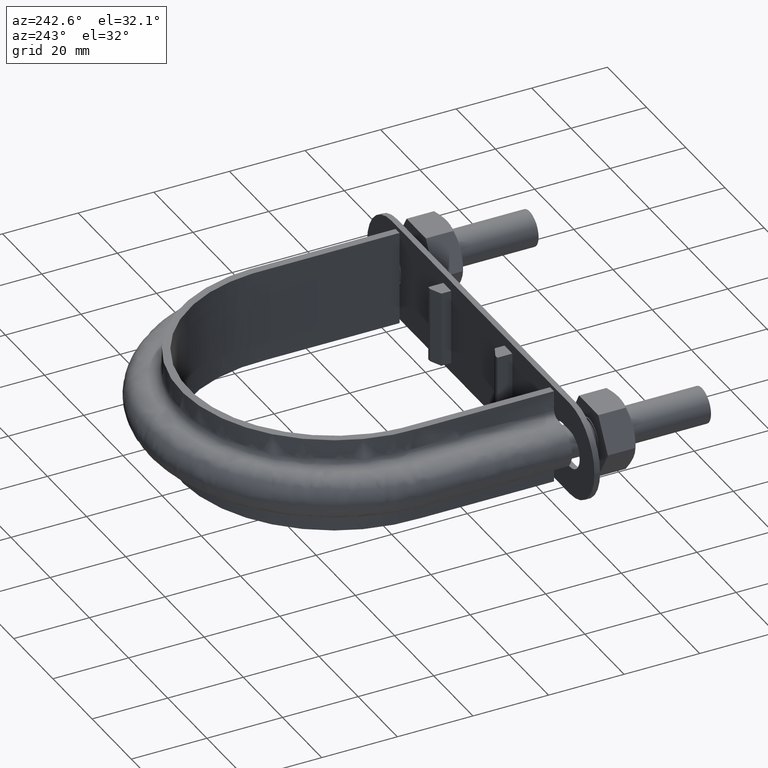
[diagram: clean part render]
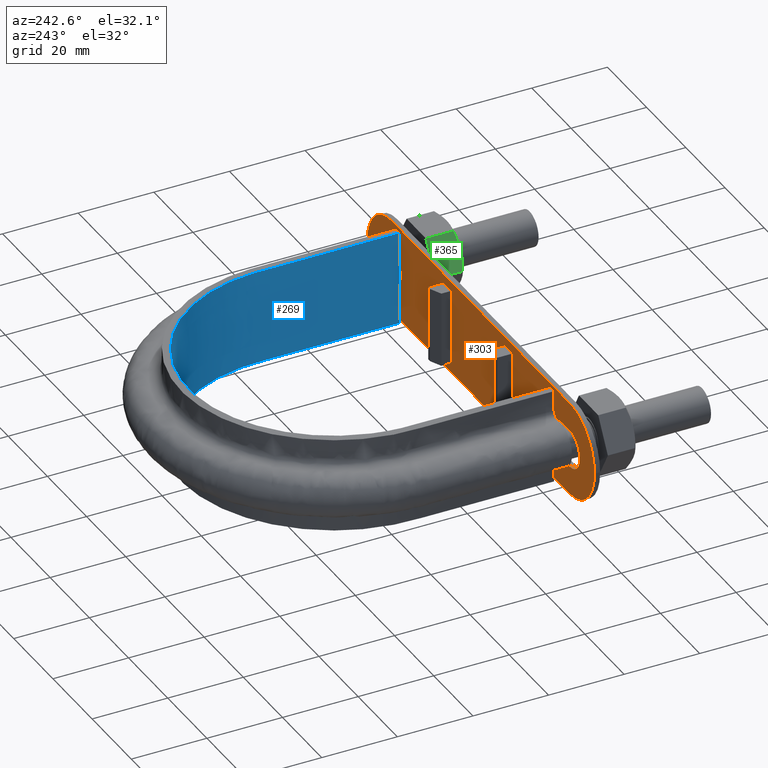
[diagram: same view with three faces highlighted in distinct colors, each labeled with its STEP entity id]
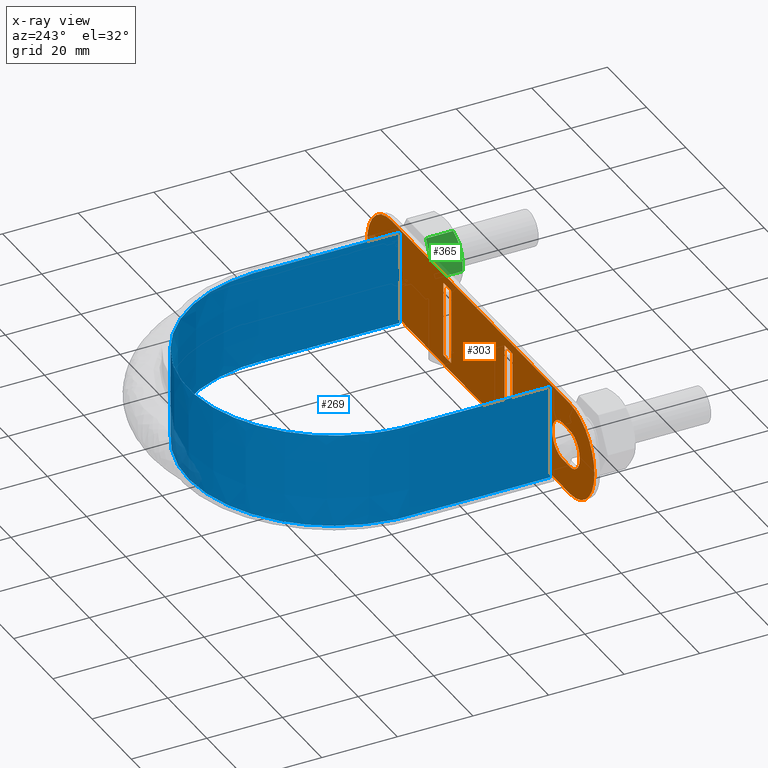
[diagram: x-ray of the same camera — body ghosted, the three highlighted faces saturated]
A machine part, auxiliary view with three faces highlighted in distinct colors.
The next image is the same camera in x-ray (body ghosted, the three faces saturated) — at least one of them is partly hidden behind the body in this view.
Their STEP definitions:

[orange] entity #303 — the highlighted planar face has unit normal (-0, 1, -0).
#303 = ADVANCED_FACE( '', ( #467, #468, #469, #470, #471 ), #472, .T. );
#467 = FACE_BOUND( '', #1549, .T. );
#468 = FACE_BOUND( '', #1550, .T. );
#469 = FACE_BOUND( '', #1551, .T. );
#470 = FACE_OUTER_BOUND( '', #1552, .T. );
#471 = FACE_BOUND( '', #1553, .T. );
#472 = PLANE( '', #1554 );
#1549 = EDGE_LOOP( '', ( #1969, #1970, #1971, #1972 ) );
#1550 = EDGE_LOOP( '', ( #1973, #1974, #1975, #1976 ) );
#1551 = EDGE_LOOP( '', ( #1977 ) );
#1552 = EDGE_LOOP( '', ( #1978, #1979, #1980, #1981, #1982, #1983 ) );
#1553 = EDGE_LOOP( '', ( #1984, #1985, #1986, #1987 ) );
#1554 = AXIS2_PLACEMENT_3D( '', #1988, #1989, #1990 );
#1969 = ORIENTED_EDGE( '', *, *, #2625, .F. );
#1970 = ORIENTED_EDGE( '', *, *, #2626, .T. );
#1971 = ORIENTED_EDGE( '', *, *, #2627, .T. );
#1972 = ORIENTED_EDGE( '', *, *, #2628, .F. );
#1973 = ORIENTED_EDGE( '', *, *, #2629, .F. );
#1974 = ORIENTED_EDGE( '', *, *, #2622, .F. );
#1975 = ORIENTED_EDGE( '', *, *, #2630, .F. );
#1976 = ORIENTED_EDGE( '', *, *, #2631, .F. );
#1977 = ORIENTED_EDGE( '', *, *, #2632, .F. );
#1978 = ORIENTED_EDGE( '', *, *, #2612, .T. );
#1979 = ORIENTED_EDGE( '', *, *, #2633, .T. );
#1980 = ORIENTED_EDGE( '', *, *, #2634, .T. );
#1981 = ORIENTED_EDGE( '', *, *, #2635, .T. );
#1982 = ORIENTED_EDGE( '', *, *, #2636, .T. );
#1983 = ORIENTED_EDGE( '', *, *, #2637, .T. );
#1984 = ORIENTED_EDGE( '', *, *, #2638, .F. );
#1985 = ORIENTED_EDGE( '', *, *, #2639, .T. );
#1986 = ORIENTED_EDGE( '', *, *, #2640, .T. );
#1987 = ORIENTED_EDGE( '', *, *, #2641, .F. );
#1988 = CARTESIAN_POINT( '', ( -47.0000000000000, 36.5000000000000, 1.16488427775561E-011 ) );
#1989 = DIRECTION( '', ( -4.78873666697753E-017, 1.00000000000000, -1.48458090479487E-015 ) );
#1990 = DIRECTION( '', ( 2.47579734491594E-013, 1.48458090479488E-015, 1.00000000000000 ) );
#2612 = EDGE_CURVE( '', #2901, #2902, #2903, .T. );
#2622 = EDGE_CURVE( '', #2917, #2918, #2919, .T. );
#2625 = EDGE_CURVE( '', #2922, #2923, #2924, .T. );
#2626 = EDGE_CURVE( '', #2922, #2925, #2926, .T. );
#2627 = EDGE_CURVE( '', #2925, #2927, #2928, .T. );
#2628 = EDGE_CURVE( '', #2923, #2927, #2929, .T. );
#2629 = EDGE_CURVE( '', #2918, #2930, #2931, .F. );
#2630 = EDGE_CURVE( '', #2932, #2917, #2933, .F. );
#2631 = EDGE_CURVE( '', #2930, #2932, #2934, .T. );
#2632 = EDGE_CURVE( '', #2935, #2935, #2936, .T. );
#2633 = EDGE_CURVE( '', #2902, #2937, #2938, .T. );
#2634 = EDGE_CURVE( '', #2937, #2939, #2940, .T. );
#2635 = EDGE_CURVE( '', #2939, #2941, #2942, .T. );
#2636 = EDGE_CURVE( '', #2941, #2943, #2944, .T. );
#2637 = EDGE_CURVE( '', #2943, #2901, #2945, .T. );
#2638 = EDGE_CURVE( '', #2946, #2947, #2948, .T. );
#2639 = EDGE_CURVE( '', #2946, #2949, #2950, .T. );
#2640 = EDGE_CURVE( '', #2949, #2951, #2952, .T. );
#2641 = EDGE_CURVE( '', #2947, #2951, #2953, .T. );
#2901 = VERTEX_POINT( '', #3570 );
#2902 = VERTEX_POINT( '', #3571 );
#2903 = CIRCLE( '', #3572, 12.5000000000000 );
#2917 = VERTEX_POINT( '', #3595 );
#2918 = VERTEX_POINT( '', #3596 );
#2919 = LINE( '', #3597, #3598 );
#2922 = VERTEX_POINT( '', #3603 );
#2923 = VERTEX_POINT( '', #3604 );
#2924 = LINE( '', #3605, #3606 );
#2925 = VERTEX_POINT( '', #3607 );
#2926 = LINE( '', #3608, #3609 );
#2927 = VERTEX_POINT( '', #3610 );
#2928 = LINE( '', #3611, #3612 );
#2929 = LINE( '', #3613, #3614 );
#2930 = VERTEX_POINT( '', #3615 );
#2931 = CIRCLE( '', #3616, 5.00000000000000 );
#2932 = VERTEX_POINT( '', #3617 );
#2933 = CIRCLE( '', #3618, 5.00000000000000 );
#2934 = LINE( '', #3619, #3620 );
#2935 = VERTEX_POINT( '', #3621 );
#2936 = CIRCLE( '', #3622, 5.00000000000000 );
#2937 = VERTEX_POINT( '', #3623 );
#2938 = LINE( '', #3624, #3625 );
#2939 = VERTEX_POINT( '', #3626 );
#2940 = CIRCLE( '', #3627, 12.5000000000000 );
#2941 = VERTEX_POINT( '', #3628 );
#2942 = CIRCLE( '', #3629, 12.5000000000000 );
#2943 = VERTEX_POINT( '', #3630 );
#2944 = LINE( '', #3631, #3632 );
#2945 = CIRCLE( '', #3633, 12.5000000000000 );
#2946 = VERTEX_POINT( '', #3634 );
#2947 = VERTEX_POINT( '', #3635 );
#2948 = LINE( '', #3636, #3637 );
#2949 = VERTEX_POINT( '', #3638 );
#2950 = LINE( '', #3639, #3640 );
#2951 = VERTEX_POINT( '', #3641 );
#2952 = LINE( '', #3642, #3643 );
#2953 = LINE( '', #3644, #3645 );
#3570 = CARTESIAN_POINT( '', ( -59.5000000000000, 36.5000000000000, 1.47401200117491E-011 ) );
#3571 = CARTESIAN_POINT( '', ( -46.9999999999969, 36.5000000000000, 12.5000000000116 ) );
#3572 = AXIS2_PLACEMENT_3D( '', #4183, #4184, #4185 );
#3595 = CARTESIAN_POINT( '', ( -43.0000000000012, 36.5000000000000, -4.99999999998934 ) );
#3596 = CARTESIAN_POINT( '', ( -47.0000000000012, 36.5000000000000, -4.99999999998835 ) );
#3597 = CARTESIAN_POINT( '', ( -47.0000000000012, 36.5000000000000, -4.99999999998835 ) );
#3598 = VECTOR( '', #4195, 1000.00000000000 );
#3603 = CARTESIAN_POINT( '', ( 13.5999999999975, 36.5000000000000, -10.0000000000034 ) );
#3604 = CARTESIAN_POINT( '', ( 13.6000000000025, 36.5000000000000, 9.99999999999664 ) );
#3605 = CARTESIAN_POINT( '', ( 13.5999999999975, 36.5000000000000, -10.0000000000034 ) );
#3606 = VECTOR( '', #4198, 1000.00000000000 );
#3607 = CARTESIAN_POINT( '', ( 17.5999999999975, 36.5000000000000, -10.0000000000043 ) );
#3608 = CARTESIAN_POINT( '', ( 13.5999999999975, 36.5000000000000, -10.0000000000034 ) );
#3609 = VECTOR( '', #4199, 1000.00000000000 );
#3610 = CARTESIAN_POINT( '', ( 17.6000000000025, 36.5000000000000, 9.99999999999565 ) );
#3611 = CARTESIAN_POINT( '', ( 17.5999999999975, 36.5000000000000, -10.0000000000043 ) );
#3612 = VECTOR( '', #4200, 1000.00000000000 );
#3613 = CARTESIAN_POINT( '', ( 13.6000000000025, 36.5000000000000, 9.99999999999664 ) );
#3614 = VECTOR( '', #4201, 1000.00000000000 );
#3615 = CARTESIAN_POINT( '', ( -46.9999999999988, 36.5000000000000, 5.00000000001165 ) );
#3616 = AXIS2_PLACEMENT_3D( '', #4202, #4203, #4204 );
#3617 = CARTESIAN_POINT( '', ( -42.9999999999988, 36.5000000000000, 5.00000000001066 ) );
#3618 = AXIS2_PLACEMENT_3D( '', #4205, #4206, #4207 );
#3619 = CARTESIAN_POINT( '', ( -42.9999999999988, 36.5000000000000, 5.00000000001066 ) );
#3620 = VECTOR( '', #4208, 1000.00000000000 );
#3621 = CARTESIAN_POINT( '', ( 49.0000000000000, 36.5000100000000, -1.21170770250068E-011 ) );
#3622 = AXIS2_PLACEMENT_3D( '', #4209, #4210, #4211 );
#3623 = CARTESIAN_POINT( '', ( 44.0000000000031, 36.5000000000000, 12.4999999999891 ) );
#3624 = CARTESIAN_POINT( '', ( -46.9999999999969, 36.5000000000000, 12.5000000000116 ) );
#3625 = VECTOR( '', #4212, 1000.00000000000 );
#3626 = CARTESIAN_POINT( '', ( 56.5000000000000, 36.5000000000000, -1.39756597423239E-011 ) );
#3627 = AXIS2_PLACEMENT_3D( '', #4213, #4214, #4215 );
#3628 = CARTESIAN_POINT( '', ( 43.9999999999970, 36.5000000000000, -12.5000000000109 ) );
#3629 = AXIS2_PLACEMENT_3D( '', #4216, #4217, #4218 );
#3630 = CARTESIAN_POINT( '', ( -47.0000000000031, 36.5000000000000, -12.4999999999883 ) );
#3631 = CARTESIAN_POINT( '', ( 43.9999999999970, 36.5000000000000, -12.5000000000109 ) );
#3632 = VECTOR( '', #4219, 1000.00000000000 );
#3633 = AXIS2_PLACEMENT_3D( '', #4220, #4221, #4222 );
#3634 = CARTESIAN_POINT( '', ( -17.6000000000025, 36.5000000000000, -9.99999999999563 ) );
#3635 = CARTESIAN_POINT( '', ( -17.5999999999976, 36.5000000000000, 10.0000000000044 ) );
#3636 = CARTESIAN_POINT( '', ( -17.6000000000025, 36.5000000000000, -9.99999999999563 ) );
#3637 = VECTOR( '', #4223, 1000.00000000000 );
#3638 = CARTESIAN_POINT( '', ( -13.6000000000025, 36.5000000000000, -9.99999999999662 ) );
#3639 = CARTESIAN_POINT( '', ( -17.6000000000025, 36.5000000000000, -9.99999999999563 ) );
#3640 = VECTOR( '', #4224, 1000.00000000000 );
#3641 = CARTESIAN_POINT( '', ( -13.5999999999975, 36.5000000000000, 10.0000000000034 ) );
#3642 = CARTESIAN_POINT( '', ( -13.6000000000025, 36.5000000000000, -9.99999999999662 ) );
#3643 = VECTOR( '', #4225, 1000.00000000000 );
#3644 = CARTESIAN_POINT( '', ( -17.5999999999975, 36.5000000000000, 10.0000000000044 ) );
#3645 = VECTOR( '', #4226, 1000.00000000000 );
#4183 = CARTESIAN_POINT( '', ( -47.0000000000000, 36.5000000000000, 1.16488427775561E-011 ) );
#4184 = DIRECTION( '', ( -4.78873666697753E-017, 1.00000000000000, -1.48458090479487E-015 ) );
#4185 = DIRECTION( '', ( -1.00000000000000, -4.78873666694079E-017, 2.47440956613516E-013 ) );
#4195 = DIRECTION( '', ( -1.00000000000000, -4.78873666694077E-017, 2.47579734491594E-013 ) );
#4198 = DIRECTION( '', ( 2.47417475293282E-013, 1.79647368299532E-015, 1.00000000000000 ) );
#4199 = DIRECTION( '', ( 1.00000000000000, 4.78873666694077E-017, -2.47579734491594E-013 ) );
#4200 = DIRECTION( '', ( 2.47417475293282E-013, 1.79647368299532E-015, 1.00000000000000 ) );
#4201 = DIRECTION( '', ( 1.00000000000000, 4.78873666694077E-017, -2.47579734491594E-013 ) );
#4202 = CARTESIAN_POINT( '', ( -47.0000000000000, 36.5000000000000, 1.16505775010321E-011 ) );
#4203 = DIRECTION( '', ( 4.78873666697753E-017, -1.00000000000000, 1.48458090479487E-015 ) );
#4204 = DIRECTION( '', ( -1.00000000000000, -4.78873666694077E-017, 2.47579734491594E-013 ) );
#4205 = CARTESIAN_POINT( '', ( -43.0000000000000, 36.5000000000000, 1.06602585630657E-011 ) );
#4206 = DIRECTION( '', ( 4.78873666697753E-017, -1.00000000000000, 1.48458090479487E-015 ) );
#4207 = DIRECTION( '', ( -1.00000000000000, -4.78873666694077E-017, 2.47579734491594E-013 ) );
#4208 = DIRECTION( '', ( 1.00000000000000, 4.78873666694077E-017, -2.47579734491594E-013 ) );
#4209 = CARTESIAN_POINT( '', ( 44.0000000000000, 36.5000100000000, -1.08791783525488E-011 ) );
#4210 = DIRECTION( '', ( -4.78873666697753E-017, 1.00000000000000, -1.48458090479487E-015 ) );
#4211 = DIRECTION( '', ( 1.00000000000000, 4.78873666694077E-017, -2.47579734491594E-013 ) );
#4212 = DIRECTION( '', ( 1.00000000000000, 4.78873666694077E-017, -2.47579734491594E-013 ) );
#4213 = CARTESIAN_POINT( '', ( 44.0000000000000, 36.5000000000000, -1.08809130611790E-011 ) );
#4214 = DIRECTION( '', ( -4.78873666697753E-017, 1.00000000000000, -1.48458090479487E-015 ) );
#4215 = DIRECTION( '', ( 2.47579734491594E-013, 1.48458090479488E-015, 1.00000000000000 ) );
#4216 = CARTESIAN_POINT( '', ( 44.0000000000000, 36.5000000000000, -1.08774436142271E-011 ) );
#4217 = DIRECTION( '', ( -4.78873666697753E-017, 1.00000000000000, -1.48458090479487E-015 ) );
#4218 = DIRECTION( '', ( 1.00000000000000, 4.78873666694079E-017, -2.47440956613516E-013 ) );
#4219 = DIRECTION( '', ( -1.00000000000000, -4.78873666694077E-017, 2.47579734491594E-013 ) );
#4220 = CARTESIAN_POINT( '', ( -47.0000000000000, 36.5000000000000, 1.16523122245081E-011 ) );
#4221 = DIRECTION( '', ( -4.78873666697753E-017, 1.00000000000000, -1.48458090479487E-015 ) );
#4222 = DIRECTION( '', ( -2.47024622979282E-013, -1.48458090479488E-015, -1.00000000000000 ) );
#4223 = DIRECTION( '', ( 2.47417475293282E-013, 1.79647368299532E-015, 1.00000000000000 ) );
#4224 = DIRECTION( '', ( 1.00000000000000, 4.78873666694077E-017, -2.47579734491594E-013 ) );
#4225 = DIRECTION( '', ( 2.47417475293282E-013, 1.79647368299532E-015, 1.00000000000000 ) );
#4226 = DIRECTION( '', ( 1.00000000000000, 4.78873666694077E-017, -2.47579734491594E-013 ) );

[blue] entity #269 — the highlighted face is a SurfaceOfExtrusion surface.
#269 = ADVANCED_FACE( '', ( #387 ), #388, .T. );
#387 = FACE_OUTER_BOUND( '', #644, .T. );
#388 = SURFACE_OF_LINEAR_EXTRUSION( '', #645, #646 );
#644 = EDGE_LOOP( '', ( #1736, #1737, #1738, #1739 ) );
#645 = B_SPLINE_CURVE_WITH_KNOTS( '', 3, ( #1740, #1741, #1742, #1743, #1744, #1745, #1746, #1747, #1748, #1749, #1750, #1751, #1752, #1753, #1754, #1755, #1756 ), .UNSPECIFIED., .F., .F., ( 4, 3, 1, 1, 1, 1, 1, 1, 1, 3, 4 ), ( -7.93017456359102, -7.00000000000000, -6.50000000000000, -6.00000000000000, -5.00000000000000, -4.00000000000000, -3.00000000000000, -2.00000000000000, -1.50000000000000, -1.00000000000000, -0.0698254364089773 ), .UNSPECIFIED. );
#646 = VECTOR( '', #1757, 1000.00000000000 );
#1736 = ORIENTED_EDGE( '', *, *, #2546, .T. );
#1737 = ORIENTED_EDGE( '', *, *, #2555, .T. );
#1738 = ORIENTED_EDGE( '', *, *, #2552, .F. );
#1739 = ORIENTED_EDGE( '', *, *, #2556, .T. );
#1740 = CARTESIAN_POINT( '', ( 38.4000000000000, 37.3000000000000, 12.5000100000909 ) );
#1741 = CARTESIAN_POINT( '', ( 38.4000000000000, 49.7333333333333, 12.5000100000909 ) );
#1742 = CARTESIAN_POINT( '', ( 38.4000000000000, 62.1666666666667, 12.5000100000909 ) );
#1743 = CARTESIAN_POINT( '', ( 38.4000000000000, 74.6000000000000, 12.5000100000909 ) );
#1744 = CARTESIAN_POINT( '', ( 38.4000000000000, 77.9378960382428, 12.5000100000909 ) );
#1745 = CARTESIAN_POINT( '', ( 37.5004323173849, 84.6534987012364, 12.5000100000909 ) );
#1746 = CARTESIAN_POINT( '', ( 32.3590360537293, 97.1468427507952, 12.5000100000909 ) );
#1747 = CARTESIAN_POINT( '', ( 20.0971465093487, 109.410921736661, 12.5000100000909 ) );
#1748 = CARTESIAN_POINT( '', ( 2.79356000082899E-014, 114.794539131670, 12.5000100000909 ) );
#1749 = CARTESIAN_POINT( '', ( -20.0971465093486, 109.410921736661, 12.5000100000909 ) );
#1750 = CARTESIAN_POINT( '', ( -32.3590360537293, 97.1468427507952, 12.5000100000909 ) );
#1751 = CARTESIAN_POINT( '', ( -37.5004323173848, 84.6534987012364, 12.5000100000909 ) );
#1752 = CARTESIAN_POINT( '', ( -38.4000000000000, 77.9378960382428, 12.5000100000909 ) );
#1753 = CARTESIAN_POINT( '', ( -38.4000000000000, 74.6000000000000, 12.5000100000909 ) );
#1754 = CARTESIAN_POINT( '', ( -38.4000000000000, 62.1666666666667, 12.5000100000909 ) );
#1755 = CARTESIAN_POINT( '', ( -38.4000000000000, 49.7333333333333, 12.5000100000909 ) );
#1756 = CARTESIAN_POINT( '', ( -38.4000000000000, 37.3000000000000, 12.5000100000909 ) );
#1757 = DIRECTION( '', ( 0.000000000000000, 0.000000000000000, -1.00000000000000 ) );
#2546 = EDGE_CURVE( '', #2787, #2788, #2789, .T. );
#2552 = EDGE_CURVE( '', #2797, #2800, #2801, .T. );
#2555 = EDGE_CURVE( '', #2788, #2800, #2805, .F. );
#2556 = EDGE_CURVE( '', #2797, #2787, #2806, .T. );
#2787 = VERTEX_POINT( '', #3194 );
#2788 = VERTEX_POINT( '', #3195 );
#2789 = LINE( '', #3196, #3197 );
#2797 = VERTEX_POINT( '', #3246 );
#2800 = VERTEX_POINT( '', #3250 );
#2801 = LINE( '', #3251, #3252 );
#2805 = B_SPLINE_CURVE_WITH_KNOTS( '', 3, ( #3287, #3288, #3289, #3290, #3291, #3292, #3293, #3294, #3295, #3296, #3297, #3298, #3299, #3300, #3301, #3302, #3303 ), .UNSPECIFIED., .F., .F., ( 4, 3, 1, 1, 1, 1, 1, 1, 1, 3, 4 ), ( -7.93017456359102, -7.00000000000000, -6.50000000000000, -6.00000000000000, -5.00000000000000, -4.00000000000000, -3.00000000000000, -2.00000000000000, -1.50000000000000, -1.00000000000000, -0.0698254364089773 ), .UNSPECIFIED. );
#2806 = B_SPLINE_CURVE_WITH_KNOTS( '', 3, ( #3304, #3305, #3306, #3307, #3308, #3309, #3310, #3311, #3312, #3313, #3314, #3315, #3316, #3317, #3318, #3319, #3320, #3321, #3322, #3323, #3324, #3325, #3326, #3327, #3328, #3329, #3330, #3331, #3332, #3333, #3334, #3335, #3336, #3337, #3338, #3339, #3340, #3341, #3342, #3343, #3344, #3345, #3346, #3347, #3348, #3349, #3350, #3351, #3352, #3353, #3354, #3355, #3356, #3357, #3358, #3359, #3360, #3361, #3362, #3363, #3364, #3365, #3366, #3367, #3368, #3369, #3370, #3371, #3372, #3373, #3374, #3375, #3376, #3377, #3378, #3379, #3380, #3381, #3382, #3383, #3384, #3385, #3386, #3387, #3388, #3389 ), .UNSPECIFIED., .F., .F., ( 4, 1, 2, 2, 2, 2, 2, 2, 2, 2, 2, 2, 2, 2, 2, 2, 2, 2, 2, 2, 2, 2, 2, 2, 2, 2, 2, 2, 2, 2, 2, 2, 2, 2, 2, 2, 2, 2, 2, 2, 2, 2, 1, 4 ), ( 6.93889390390723E-018, 0.0243379018108105, 0.0365068527162158, 0.0380279715793914, 0.0395490904425670, 0.0425913281689183, 0.0456335658952696, 0.0486758036216209, 0.0547602790743234, 0.0578025168006747, 0.0593236356638503, 0.0608447545270259, 0.0669292299797284, 0.0699714677060797, 0.0714925865692553, 0.0730137054324310, 0.0790981808851335, 0.0851826563378360, 0.0867037752010117, 0.0882248940641873, 0.0912671317905386, 0.0973516072432410, 0.0988727261064167, 0.100393844969592, 0.103436082695944, 0.109520558148646, 0.112562795874997, 0.115605033601349, 0.121689509054051, 0.123210627917227, 0.124731746780402, 0.127773984506753, 0.133858459959456, 0.136900697685807, 0.139942935412158, 0.146027410864861, 0.149069648591212, 0.150590767454388, 0.152111886317563, 0.155154124043914, 0.156675242907090, 0.158196361770266, 0.170365312675671, 0.194703214486481 ), .UNSPECIFIED. );
#3194 = CARTESIAN_POINT( '', ( -38.4000000000000, 37.3000000000000, 12.5000000000000 ) );
#3195 = CARTESIAN_POINT( '', ( -38.4000000000000, 37.3000000000000, -12.5000000000000 ) );
#3196 = CARTESIAN_POINT( '', ( -38.4000000000000, 37.3000000000000, 12.5000100000909 ) );
#3197 = VECTOR( '', #4084, 1000.00000000000 );
#3246 = CARTESIAN_POINT( '', ( 38.4000000000000, 37.3000000000000, 12.5000000000000 ) );
#3250 = CARTESIAN_POINT( '', ( 38.4000000000000, 37.3000000000000, -12.5000000000000 ) );
#3251 = CARTESIAN_POINT( '', ( 38.4000000000000, 37.3000000000000, 12.5000100000909 ) );
#3252 = VECTOR( '', #4088, 1000.00000000000 );
#3287 = CARTESIAN_POINT( '', ( 38.4000000000000, 37.3000000000000, -12.5000000000000 ) );
#3288 = CARTESIAN_POINT( '', ( 38.4000000000000, 49.7333333333333, -12.5000000000000 ) );
#3289 = CARTESIAN_POINT( '', ( 38.4000000000000, 62.1666666666667, -12.5000000000000 ) );
#3290 = CARTESIAN_POINT( '', ( 38.4000000000000, 74.6000000000000, -12.5000000000000 ) );
#3291 = CARTESIAN_POINT( '', ( 38.4000000000000, 77.9378960382428, -12.5000000000000 ) );
#3292 = CARTESIAN_POINT( '', ( 37.5004323173849, 84.6534987012364, -12.5000000000000 ) );
#3293 = CARTESIAN_POINT( '', ( 32.3590360537293, 97.1468427507952, -12.5000000000000 ) );
#3294 = CARTESIAN_POINT( '', ( 20.0971465093487, 109.410921736661, -12.5000000000000 ) );
#3295 = CARTESIAN_POINT( '', ( 2.79356000082899E-014, 114.794539131670, -12.5000000000000 ) );
#3296 = CARTESIAN_POINT( '', ( -20.0971465093486, 109.410921736661, -12.5000000000000 ) );
#3297 = CARTESIAN_POINT( '', ( -32.3590360537293, 97.1468427507952, -12.5000000000000 ) );
#3298 = CARTESIAN_POINT( '', ( -37.5004323173848, 84.6534987012364, -12.5000000000000 ) );
#3299 = CARTESIAN_POINT( '', ( -38.4000000000000, 77.9378960382428, -12.5000000000000 ) );
#3300 = CARTESIAN_POINT( '', ( -38.4000000000000, 74.6000000000000, -12.5000000000000 ) );
#3301 = CARTESIAN_POINT( '', ( -38.4000000000000, 62.1666666666667, -12.5000000000000 ) );
#3302 = CARTESIAN_POINT( '', ( -38.4000000000000, 49.7333333333333, -12.5000000000000 ) );
#3303 = CARTESIAN_POINT( '', ( -38.4000000000000, 37.3000000000000, -12.5000000000000 ) );
#3304 = CARTESIAN_POINT( '', ( 38.4000000000000, 37.3000000000000, 12.5000000000000 ) );
#3305 = CARTESIAN_POINT( '', ( 38.4000000000000, 45.4126339369367, 12.5000000000000 ) );
#3306 = CARTESIAN_POINT( '', ( 38.4000000000000, 57.5815848423419, 12.5000000000000 ) );
#3307 = CARTESIAN_POINT( '', ( 38.4000000000000, 69.7505357477469, 12.5000000000000 ) );
#3308 = CARTESIAN_POINT( '', ( 38.4000000000000, 74.3138923372738, 12.5000000000000 ) );
#3309 = CARTESIAN_POINT( '', ( 38.4027743076037, 74.8211194098904, 12.5000000000000 ) );
#3310 = CARTESIAN_POINT( '', ( 38.3830167791574, 75.8338636956792, 12.5000000000000 ) );
#3311 = CARTESIAN_POINT( '', ( 38.3628782069929, 76.3395426144401, 12.5000000000000 ) );
#3312 = CARTESIAN_POINT( '', ( 38.2722040230530, 77.8545348977658, 12.5000000000000 ) );
#3313 = CARTESIAN_POINT( '', ( 38.1714849409613, 78.8618088567026, 12.5000000000000 ) );
#3314 = CARTESIAN_POINT( '', ( 37.8904277266655, 80.8709771566201, 12.5000000000000 ) );
#3315 = CARTESIAN_POINT( '', ( 37.7100929165158, 81.8728717220619, 12.5000000000000 ) );
#3316 = CARTESIAN_POINT( '', ( 37.2682777085644, 83.8711780914732, 12.5000000000000 ) );
#3317 = CARTESIAN_POINT( '', ( 37.0058649207665, 84.8692095980045, 12.5000000000000 ) );
#3318 = CARTESIAN_POINT( '', ( 36.1099085355124, 87.8004283289942, 12.5000000000000 ) );
#3319 = CARTESIAN_POINT( '', ( 35.3652812283339, 89.6892778605102, 12.5000000000000 ) );
#3320 = CARTESIAN_POINT( '', ( 34.0270721353676, 92.4244820465236, 12.5000000000000 ) );
#3321 = CARTESIAN_POINT( '', ( 33.5438803306412, 93.3197635736672, 12.5000000000000 ) );
#3322 = CARTESIAN_POINT( '', ( 32.7614856080269, 94.6371533741601, 12.5000000000000 ) );
#3323 = CARTESIAN_POINT( '', ( 32.4911122498970, 95.0720394393450, 12.5000000000000 ) );
#3324 = CARTESIAN_POINT( '', ( 31.9310694523163, 95.9332591910994, 12.5000000000000 ) );
#3325 = CARTESIAN_POINT( '', ( 31.6416548483074, 96.3590998328813, 12.5000000000000 ) );
#3326 = CARTESIAN_POINT( '', ( 30.1598500561493, 98.4479727097781, 12.5000000000000 ) );
#3327 = CARTESIAN_POINT( '', ( 28.8544690281685, 100.006253780205, 12.5000000000000 ) );
#3328 = CARTESIAN_POINT( '', ( 26.7242269234555, 102.181725572989, 12.5000000000000 ) );
#3329 = CARTESIAN_POINT( '', ( 25.9852601970116, 102.879711605143, 12.5000000000000 ) );
#3330 = CARTESIAN_POINT( '', ( 24.8327554866620, 103.885251295440, 12.5000000000000 ) );
#3331 = CARTESIAN_POINT( '', ( 24.4412331318475, 104.213513644747, 12.5000000000000 ) );
#3332 = CARTESIAN_POINT( '', ( 23.6432116170529, 104.855950622700, 12.5000000000000 ) );
#3333 = CARTESIAN_POINT( '', ( 23.2357844532912, 105.170799679600, 12.5000000000000 ) );
#3334 = CARTESIAN_POINT( '', ( 21.1728995967699, 106.699717522120, 12.5000000000000 ) );
#3335 = CARTESIAN_POINT( '', ( 19.4461214786922, 107.775116348712, 12.5000000000000 ) );
#3336 = CARTESIAN_POINT( '', ( 15.8424012951625, 109.635807157406, 12.5000000000000 ) );
#3337 = CARTESIAN_POINT( '', ( 13.9663663217122, 110.422851581443, 12.5000000000000 ) );
#3338 = CARTESIAN_POINT( '', ( 11.5271708169510, 111.224762065559, 12.5000000000000 ) );
#3339 = CARTESIAN_POINT( '', ( 11.0351210878856, 111.375746188077, 12.5000000000000 ) );
#3340 = CARTESIAN_POINT( '', ( 10.0502423640906, 111.656786422983, 12.5000000000000 ) );
#3341 = CARTESIAN_POINT( '', ( 9.55637016529610, 111.787194835959, 12.5000000000000 ) );
#3342 = CARTESIAN_POINT( '', ( 8.07051418322849, 112.148502213831, 12.5000000000000 ) );
#3343 = CARTESIAN_POINT( '', ( 7.07429985999563, 112.349545743025, 12.5000000000000 ) );
#3344 = CARTESIAN_POINT( '', ( 4.06886690428269, 112.834187354574, 12.5000000000000 ) );
#3345 = CARTESIAN_POINT( '', ( 2.04300780873461, 113.000351662539, 12.5000000000000 ) );
#3346 = CARTESIAN_POINT( '', ( -0.518810472446378, 112.999911391897, 12.5000000000000 ) );
#3347 = CARTESIAN_POINT( '', ( -1.03384934041149, 112.989267949138, 12.5000000000000 ) );
#3348 = CARTESIAN_POINT( '', ( -2.05999227101049, 112.947123645522, 12.5000000000000 ) );
#3349 = CARTESIAN_POINT( '', ( -2.57100025916389, 112.915690794062, 12.5000000000000 ) );
#3350 = CARTESIAN_POINT( '', ( -4.09798525337142, 112.791070625936, 12.5000000000000 ) );
#3351 = CARTESIAN_POINT( '', ( -5.10793619044585, 112.667626472699, 12.5000000000000 ) );
#3352 = CARTESIAN_POINT( '', ( -8.11438462156156, 112.179780837088, 12.5000000000000 ) );
#3353 = CARTESIAN_POINT( '', ( -10.0876738344831, 111.698850790018, 12.5000000000000 ) );
#3354 = CARTESIAN_POINT( '', ( -13.0003199951633, 110.740024822744, 12.5000000000000 ) );
#3355 = CARTESIAN_POINT( '', ( -13.9672170977489, 110.378727202231, 12.5000000000000 ) );
#3356 = CARTESIAN_POINT( '', ( -15.8546719802247, 109.585984907772, 12.5000000000000 ) );
#3357 = CARTESIAN_POINT( '', ( -16.7774313079130, 109.154197465974, 12.5000000000000 ) );
#3358 = CARTESIAN_POINT( '', ( -19.4833402127084, 107.753490344414, 12.5000000000000 ) );
#3359 = CARTESIAN_POINT( '', ( -21.2036319794212, 106.678400373100, 12.5000000000000 ) );
#3360 = CARTESIAN_POINT( '', ( -23.2504143165325, 105.159581599005, 12.5000000000000 ) );
#3361 = CARTESIAN_POINT( '', ( -23.6545765017692, 104.847044416500, 12.5000000000000 ) );
#3362 = CARTESIAN_POINT( '', ( -24.4524162332021, 104.204260920726, 12.5000000000000 ) );
#3363 = CARTESIAN_POINT( '', ( -24.8469576925092, 103.873240647292, 12.5000000000000 ) );
#3364 = CARTESIAN_POINT( '', ( -26.0068899055371, 102.860053871449, 12.5000000000000 ) );
#3365 = CARTESIAN_POINT( '', ( -26.7486892538448, 102.158088969383, 12.5000000000000 ) );
#3366 = CARTESIAN_POINT( '', ( -28.8823748109425, 99.9749913172511, 12.5000000000000 ) );
#3367 = CARTESIAN_POINT( '', ( -30.1833131714203, 98.4172992895713, 12.5000000000000 ) );
#3368 = CARTESIAN_POINT( '', ( -31.9490860628643, 95.9244952680188, 12.5000000000000 ) );
#3369 = CARTESIAN_POINT( '', ( -32.5065492449491, 95.0673574400837, 12.5000000000000 ) );
#3370 = CARTESIAN_POINT( '', ( -33.5561706257858, 93.2981084952208, 12.5000000000000 ) );
#3371 = CARTESIAN_POINT( '', ( -34.0419906193421, 92.3961278792793, 12.5000000000000 ) );
#3372 = CARTESIAN_POINT( '', ( -35.3824842141315, 89.6497254279648, 12.5000000000000 ) );
#3373 = CARTESIAN_POINT( '', ( -36.1236281599903, 87.7611046726044, 12.5000000000000 ) );
#3374 = CARTESIAN_POINT( '', ( -37.0127103209051, 84.8439686210019, 12.5000000000000 ) );
#3375 = CARTESIAN_POINT( '', ( -37.2717329928220, 83.8574678769680, 12.5000000000000 ) );
#3376 = CARTESIAN_POINT( '', ( -37.6030425852182, 82.3560732451662, 12.5000000000000 ) );
#3377 = CARTESIAN_POINT( '', ( -37.7041051856698, 81.8508772890733, 12.5000000000000 ) );
#3378 = CARTESIAN_POINT( '', ( -37.8853786337736, 80.8410267292641, 12.5000000000000 ) );
#3379 = CARTESIAN_POINT( '', ( -37.9657364586179, 80.3359356167599, 12.5000000000000 ) );
#3380 = CARTESIAN_POINT( '', ( -38.1763323138402, 78.8201705745681, 12.5000000000000 ) );
#3381 = CARTESIAN_POINT( '', ( -38.2761686057871, 77.8090061644103, 12.5000000000000 ) );
#3382 = CARTESIAN_POINT( '', ( -38.3651025185759, 76.2912783131884, 12.5000000000000 ) );
#3383 = CARTESIAN_POINT( '', ( -38.3845912942189, 75.7852051818454, 12.5000000000000 ) );
#3384 = CARTESIAN_POINT( '', ( -38.4030301939459, 74.7727275628626, 12.5000000000000 ) );
#3385 = CARTESIAN_POINT( '', ( -38.4000000000000, 74.2662911261510, 12.5000000000000 ) );
#3386 = CARTESIAN_POINT( '', ( -38.4000000000000, 69.7088031790913, 12.5000000000000 ) );
#3387 = CARTESIAN_POINT( '', ( -38.4000000000000, 57.5555019869321, 12.5000000000000 ) );
#3388 = CARTESIAN_POINT( '', ( -38.4000000000000, 45.4022007947727, 12.5000000000000 ) );
#3389 = CARTESIAN_POINT( '', ( -38.4000000000000, 37.3000000000000, 12.5000000000000 ) );
#4084 = DIRECTION( '', ( 0.000000000000000, 0.000000000000000, -1.00000000000000 ) );
#4088 = DIRECTION( '', ( 0.000000000000000, 0.000000000000000, -1.00000000000000 ) );

[green] entity #365 — the highlighted planar face has unit normal (0.866, -0, -0.5).
#365 = ADVANCED_FACE( '', ( #605 ), #606, .F. );
#605 = FACE_OUTER_BOUND( '', #1687, .T. );
#606 = PLANE( '', #1688 );
#1687 = EDGE_LOOP( '', ( #2442, #2443, #2444, #2445, #2446 ) );
#1688 = AXIS2_PLACEMENT_3D( '', #2447, #2448, #2449 );
#2442 = ORIENTED_EDGE( '', *, *, #2764, .F. );
#2443 = ORIENTED_EDGE( '', *, *, #2769, .F. );
#2444 = ORIENTED_EDGE( '', *, *, #2763, .F. );
#2445 = ORIENTED_EDGE( '', *, *, #2760, .F. );
#2446 = ORIENTED_EDGE( '', *, *, #2770, .F. );
#2447 = CARTESIAN_POINT( '', ( 34.1850454237812, 30.0000000000000, 2.43152981190365E-012 ) );
#2448 = DIRECTION( '', ( 0.866025403784280, -1.81492883563587E-016, -0.500000000000276 ) );
#2449 = DIRECTION( '', ( -0.500000000000276, 1.75487645984596E-016, -0.866025403784279 ) );
#2760 = EDGE_CURVE( '', #3146, #3128, #3148, .T. );
#2763 = EDGE_CURVE( '', #3128, #3149, #3153, .F. );
#2764 = EDGE_CURVE( '', #3106, #3154, #3155, .T. );
#2769 = EDGE_CURVE( '', #3149, #3106, #3161, .T. );
#2770 = EDGE_CURVE( '', #3154, #3146, #3162, .T. );
#3106 = VERTEX_POINT( '', #3933 );
#3128 = VERTEX_POINT( '', #3970 );
#3146 = VERTEX_POINT( '', #3992 );
#3148 = LINE( '', #3994, #3995 );
#3149 = VERTEX_POINT( '', #3996 );
#3153 = LINE( '', #4001, #4002 );
#3154 = VERTEX_POINT( '', #4003 );
#3155 = B_SPLINE_CURVE_WITH_KNOTS( '', 3, ( #4004, #4005, #4006, #4007, #4008, #4009, #4010, #4011 ), .UNSPECIFIED., .F., .F., ( 4, 2, 2, 4 ), ( 0.00493529902949212, 0.00616408349151578, 0.00739286795353944, 0.00985043687758676 ), .UNSPECIFIED. );
#3161 = B_SPLINE_CURVE_WITH_KNOTS( '', 3, ( #4028, #4029, #4030, #4031, #4032, #4033 ), .UNSPECIFIED., .F., .F., ( 4, 2, 4 ), ( 7.17194508350507E-007, 0.00246800811200023, 0.00493529902949212 ), .UNSPECIFIED. );
#3162 = LINE( '', #4034, #4035 );
#3933 = CARTESIAN_POINT( '', ( 36.6387840678370, 22.0000000000013, 4.25000000000043 ) );
#3970 = CARTESIAN_POINT( '', ( 39.0775337474882, 30.0000000000000, 8.47403835209707 ) );
#3992 = CARTESIAN_POINT( '', ( 34.2000343881857, 30.0000000000000, 0.0259616479037980 ) );
#3994 = CARTESIAN_POINT( '', ( 34.1887840678371, 30.0000000000000, 0.00647552145867818 ) );
#3995 = VECTOR( '', #4409, 999.999999999959 );
#3996 = CARTESIAN_POINT( '', ( 39.0775337474882, 22.7505553499477, 8.47403835209707 ) );
#4001 = CARTESIAN_POINT( '', ( 39.0775337474882, 30.0000000000000, 8.47403835209707 ) );
#4002 = VECTOR( '', #4414, 1000.00000000016 );
#4003 = CARTESIAN_POINT( '', ( 34.2000343881857, 22.7505553499477, 0.0259616479037976 ) );
#4004 = CARTESIAN_POINT( '', ( 36.6387840678376, 22.0000000000003, 4.25000000000021 ) );
#4005 = CARTESIAN_POINT( '', ( 36.4319292539621, 22.0000000000003, 3.89171695257789 ) );
#4006 = CARTESIAN_POINT( '', ( 36.2240406570362, 22.0177112141223, 3.53164334038816 ) );
#4007 = CARTESIAN_POINT( '', ( 35.8127845670085, 22.0863020976802, 2.81932689753875 ) );
#4008 = CARTESIAN_POINT( '', ( 35.6085235088389, 22.1371114863342, 2.46553636678136 ) );
#4009 = CARTESIAN_POINT( '', ( 34.9993502254468, 22.3331491064658, 1.41041728933350 ) );
#4010 = CARTESIAN_POINT( '', ( 34.5980345022334, 22.5218250443851, 0.715318066852257 ) );
#4011 = CARTESIAN_POINT( '', ( 34.2000343881856, 22.7505553499466, 0.0259616479036318 ) );
#4028 = CARTESIAN_POINT( '', ( 39.0775337474895, 22.7505553499466, 8.47403835209651 ) );
#4029 = CARTESIAN_POINT( '', ( 38.6784819807174, 22.5212206605157, 7.78286041719757 ) );
#4030 = CARTESIAN_POINT( '', ( 38.2765478875246, 22.3324529479807, 7.08669014649394 ) );
#4031 = CARTESIAN_POINT( '', ( 37.4644024261559, 22.0714150925762, 5.68001294426790 ) );
#4032 = CARTESIAN_POINT( '', ( 37.0541303057564, 22.0000000000003, 4.96940078680749 ) );
#4033 = CARTESIAN_POINT( '', ( 36.6387840678376, 22.0000000000003, 4.25000000000021 ) );
#4034 = CARTESIAN_POINT( '', ( 34.2000343881857, 30.0000000000000, 0.0259616479038000 ) );
#4035 = VECTOR( '', #4419, 1000.00000000016 );
#4409 = DIRECTION( '', ( 0.500000000000153, -1.75487645984570E-016, 0.866025403784350 ) );
#4414 = DIRECTION( '', ( 2.44921270764475E-016, 1.00000000000000, 6.12303176911189E-017 ) );
#4419 = DIRECTION( '', ( 2.44921270764475E-016, 1.00000000000000, 6.12303176911189E-017 ) );